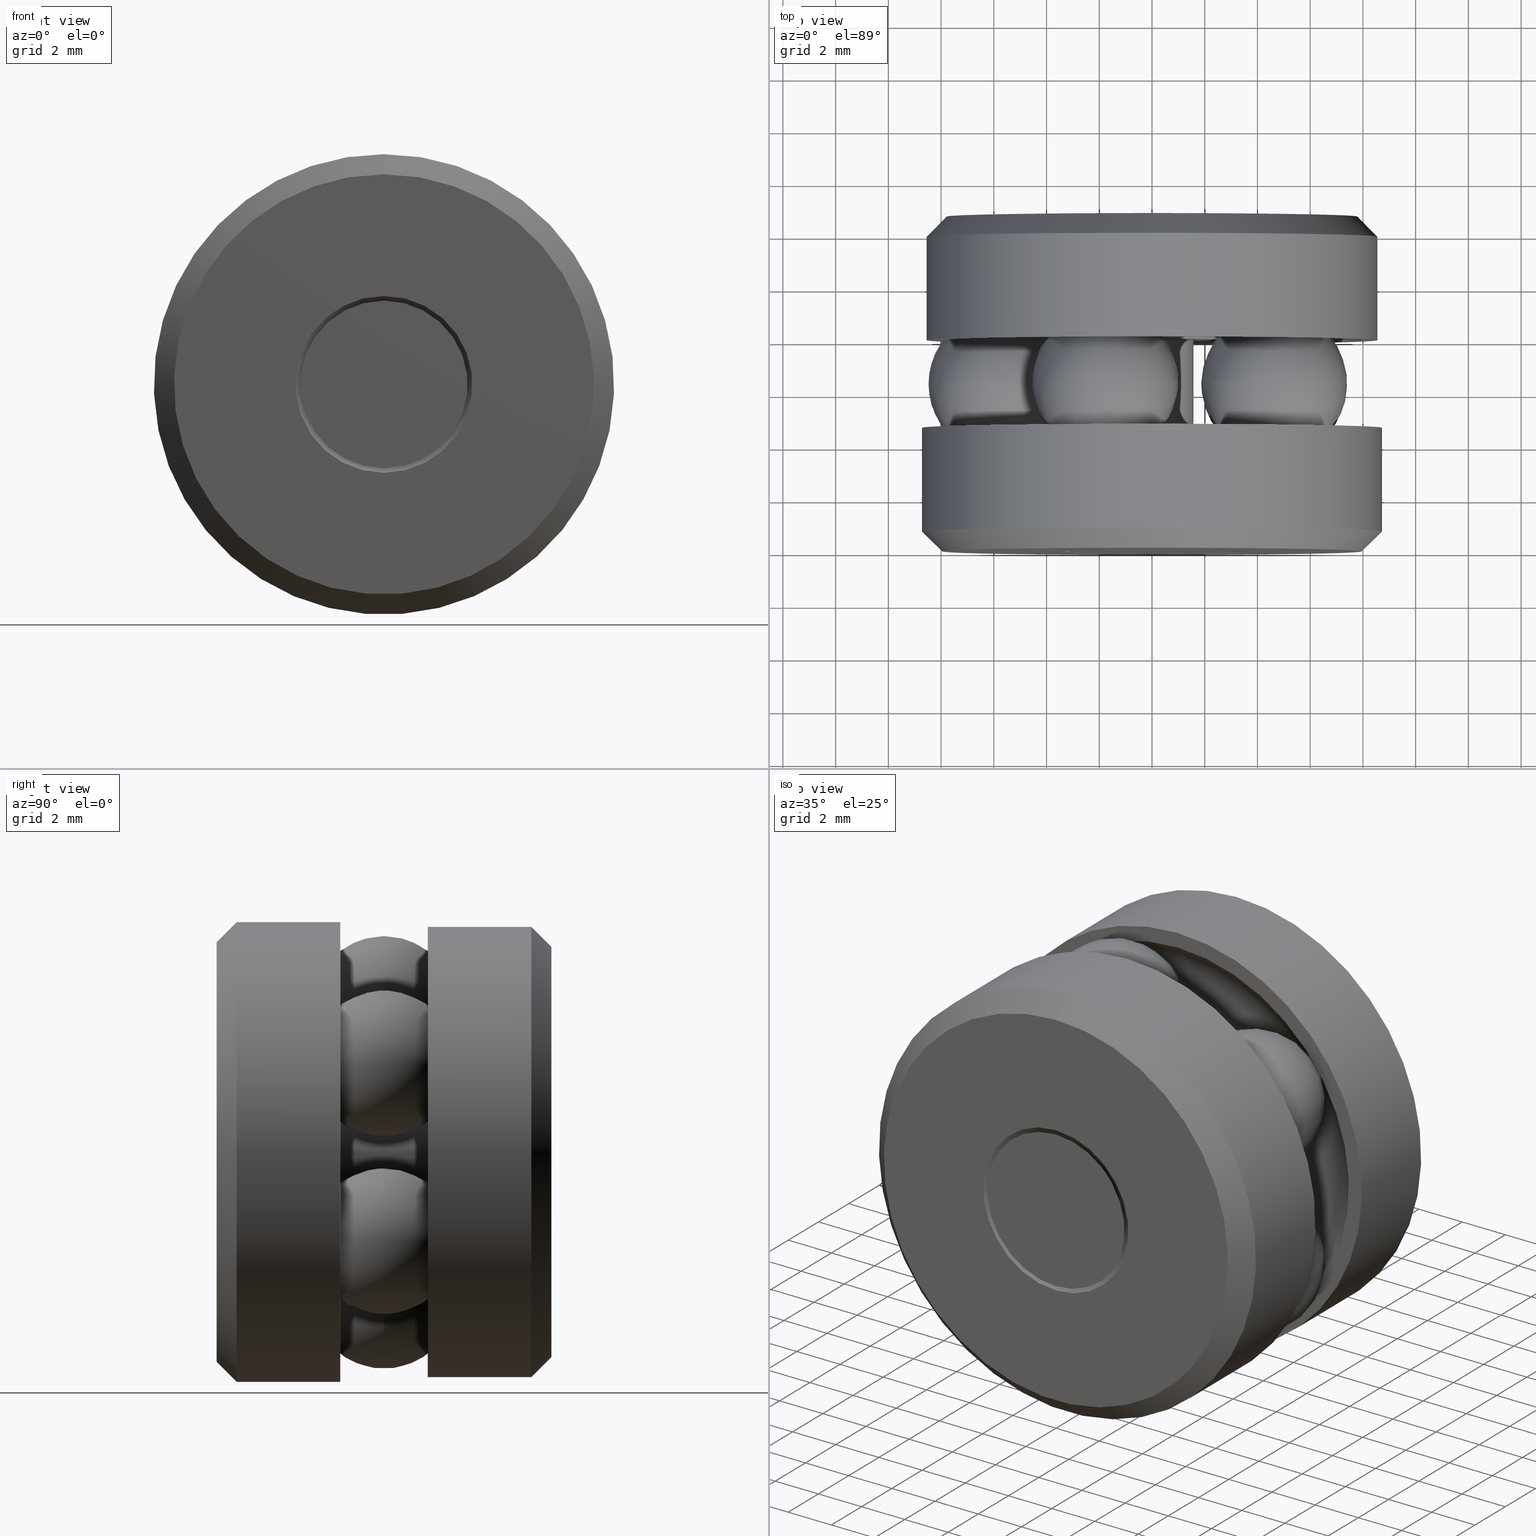
[diagram: canonical four-view strip — front | top / right | iso, engineering-drawing reading convention]
A machine part, canonical four-view strip (front | top / right | iso — engineering-drawing reading convention). The complete STEP part file that produces these views, byte-faithful:
ISO-10303-21;
HEADER;
FILE_DESCRIPTION (( 'STEP AP203' ),
    '1' );
FILE_NAME ('T-114RG_T-114RG-0011.step',
    '2016-02-04T15:34:09',
    ( '' ),
    ( '' ),
    'SwSTEP 2.0',
    'SolidWorks 2016',
    '' );
FILE_SCHEMA (( 'CONFIG_CONTROL_DESIGN' ));
ENDSEC;

DATA;
#1 = AXIS2_PLACEMENT_3D ( 'NONE', #110, #106, #127 ) ;
#2 = ORIENTED_EDGE ( 'NONE', *, *, #113, .T. ) ;
#3 = CARTESIAN_POINT ( 'NONE',  ( 0.0000000000000000000, 0.0000000000000000000, 0.0000000000000000000 ) ) ;
#4 = AXIS2_PLACEMENT_3D ( 'NONE', #57, #281, #498 ) ;
#5 = EDGE_LOOP ( 'NONE', ( #374 ) ) ;
#6 = ORIENTED_EDGE ( 'NONE', *, *, #187, .T. ) ;
#7 = EDGE_LOOP ( 'NONE', ( #136 ) ) ;
#8 = EDGE_CURVE ( 'NONE', #472, #472, #351, .T. ) ;
#9 = EDGE_CURVE ( 'NONE', #27, #27, #158, .T. ) ;
#10 = VERTEX_POINT ( 'NONE', #180 ) ;
#11 = DIRECTION ( 'NONE',  ( 0.0000000000000000000, 0.0000000000000000000, 1.000000000000000000 ) ) ;
#12 =( NAMED_UNIT ( * ) SI_UNIT ( $, .STERADIAN. ) SOLID_ANGLE_UNIT ( ) );
#13 = CIRCLE ( 'NONE', #1, 0.3437500000000000000 ) ;
#14 = EDGE_CURVE ( 'NONE', #460, #460, #13, .T. ) ;
#15 = LOCAL_TIME ( 10, 34, 9.000000000000000000, #161 ) ;
#16 = APPROVAL_STATUS ( 'not_yet_approved' ) ;
#17 = DIRECTION ( 'NONE',  ( -0.5877852522924685900, 0.0000000000000000000, 0.8090169943749506700 ) ) ;
#18 = APPROVAL_STATUS ( 'not_yet_approved' ) ;
#19 = FACE_OUTER_BOUND ( 'NONE', #184, .T. ) ;
#20 = ORIENTED_EDGE ( 'NONE', *, *, #34, .T. ) ;
#21 = AXIS2_PLACEMENT_3D ( 'NONE', #256, #310, #164 ) ;
#22 = DATE_TIME_ROLE ( 'creation_date' ) ;
#23 = DIRECTION ( 'NONE',  ( 0.0000000000000000000, 0.0000000000000000000, 1.000000000000000000 ) ) ;
#24 = DIRECTION ( 'NONE',  ( -0.0000000000000000000, 1.000000000000000000, -0.0000000000000000000 ) ) ;
#25 =( NAMED_UNIT ( * ) PLANE_ANGLE_UNIT ( ) SI_UNIT ( $, .RADIAN. ) );
#26 = DIRECTION ( 'NONE',  ( -0.8090169943749422300, 0.0000000000000000000, 0.5877852522924802400 ) ) ;
#27 = VERTEX_POINT ( 'NONE', #78 ) ;
#28 = DIRECTION ( 'NONE',  ( -0.0000000000000000000, 1.000000000000000000, -0.0000000000000000000 ) ) ;
#29 = CIRCLE ( 'NONE', #211, 0.1249999999999992800 ) ;
#30 = MANIFOLD_SOLID_BREP ( 'Revolve2[3]', #209 ) ;
#31 = AXIS2_PLACEMENT_3D ( 'NONE', #313, #308, #357 ) ;
#32 = CALENDAR_DATE ( 2016, 4, 2 ) ;
#33 = ADVANCED_FACE ( 'NONE', ( ), #257, .T. ) ;
#34 = EDGE_CURVE ( 'NONE', #350, #350, #29, .T. ) ;
#35 = ADVANCED_FACE ( 'NONE', ( #449, #138 ), #436, .T. ) ;
#36 = FACE_OUTER_BOUND ( 'NONE', #348, .T. ) ;
#37 = CARTESIAN_POINT ( 'NONE',  ( 0.0000000000000000000, 0.4375000000000000600, 0.0000000000000000000 ) ) ;
#38 = CARTESIAN_POINT ( 'NONE',  ( 0.0000000000000000000, 0.03000000000000024200, 0.0000000000000000000 ) ) ;
#39 =( CONVERSION_BASED_UNIT ( 'INCH', #151 ) LENGTH_UNIT ( ) NAMED_UNIT ( #192 ) );
#40 = AXIS2_PLACEMENT_3D ( 'NONE', #170, #185, #181 ) ;
#41 = EDGE_LOOP ( 'NONE', ( #115 ) ) ;
#42 = ORIENTED_EDGE ( 'NONE', *, *, #14, .T. ) ;
#43 = AXIS2_PLACEMENT_3D ( 'NONE', #438, #375, #368 ) ;
#44 = CARTESIAN_POINT ( 'NONE',  ( 0.1826355864801431900, 0.2500000000000000000, -0.1326925207050274100 ) ) ;
#45 = MECHANICAL_CONTEXT ( 'NONE', #52, 'mechanical' ) ;
#46 = CIRCLE ( 'NONE', #109, 0.3067500000000001300 ) ;
#47 = EDGE_LOOP ( 'NONE', ( #141 ) ) ;
#48 = EDGE_CURVE ( 'NONE', #255, #255, #537, .T. ) ;
#49 = DIRECTION ( 'NONE',  ( 1.000000000000000000, 0.0000000000000000000, 0.0000000000000000000 ) ) ;
#50 = PERSON_AND_ORGANIZATION ( #429, #229 ) ;
#51 = DIRECTION ( 'NONE',  ( 0.0000000000000000000, 0.0000000000000000000, 1.000000000000000000 ) ) ;
#52 = APPLICATION_CONTEXT ( 'configuration controlled 3d designs of mechanical parts and assemblies' ) ;
#53 = EDGE_LOOP ( 'NONE', ( #97 ) ) ;
#54 = DIRECTION ( 'NONE',  ( 0.0000000000000000000, 0.0000000000000000000, 1.000000000000000000 ) ) ;
#55 = CIRCLE ( 'NONE', #335, 0.3129500000000000100 ) ;
#56 = DIRECTION ( 'NONE',  ( -0.0000000000000000000, 1.000000000000000000, -0.0000000000000000000 ) ) ;
#57 = CARTESIAN_POINT ( 'NONE',  ( -0.1385499999999999800, 0.3154000000000000100, 0.0000000000000000000 ) ) ;
#58 = AXIS2_PLACEMENT_3D ( 'NONE', #397, #391, #471 ) ;
#59 = EDGE_LOOP ( 'NONE', ( #103 ) ) ;
#60 = ORIENTED_EDGE ( 'NONE', *, *, #88, .F. ) ;
#61 = DIRECTION ( 'NONE',  ( 0.0000000000000000000, 0.0000000000000000000, 1.000000000000000000 ) ) ;
#62 = FACE_BOUND ( 'NONE', #296, .T. ) ;
#63 = EDGE_LOOP ( 'NONE', ( #294 ) ) ;
#64 = CARTESIAN_POINT ( 'NONE',  ( 0.1826355864801451300, 0.2500000000000000000, 0.1326925207050247700 ) ) ;
#65 = DIRECTION ( 'NONE',  ( -0.0000000000000000000, 1.000000000000000000, -0.0000000000000000000 ) ) ;
#66 = EDGE_LOOP ( 'NONE', ( #542 ) ) ;
#67 = DIRECTION ( 'NONE',  ( 0.0000000000000000000, 0.0000000000000000000, 1.000000000000000000 ) ) ;
#68 = COORDINATED_UNIVERSAL_TIME_OFFSET ( 5, 0, .BEHIND. ) ;
#69 = CARTESIAN_POINT ( 'NONE',  ( 0.0000000000000000000, 0.1846000000000000700, 0.0000000000000000000 ) ) ;
#70 = DIRECTION ( 'NONE',  ( -0.0000000000000000000, 1.000000000000000000, -0.0000000000000000000 ) ) ;
#71 = EDGE_LOOP ( 'NONE', ( #76 ) ) ;
#72 = CARTESIAN_POINT ( 'NONE',  ( 0.0000000000000000000, 0.4699999999999996400, 0.0000000000000000000 ) ) ;
#73 = FACE_OUTER_BOUND ( 'NONE', #154, .T. ) ;
#74 = DIRECTION ( 'NONE',  ( -0.0000000000000000000, 1.000000000000000000, -0.0000000000000000000 ) ) ;
#75 = APPROVAL_ROLE ( '' ) ;
#76 = ORIENTED_EDGE ( 'NONE', *, *, #273, .T. ) ;
#77 = CARTESIAN_POINT ( 'NONE',  ( 0.0000000000000000000, 0.3154000000000000100, 0.0000000000000000000 ) ) ;
#78 = CARTESIAN_POINT ( 'NONE',  ( 0.0000000000000000000, 0.06250000000000001400, 0.06250000000000000000 ) ) ;
#79 = EDGE_LOOP ( 'NONE', ( #467 ) ) ;
#80 = CARTESIAN_POINT ( 'NONE',  ( 0.0000000000000000000, 0.0000000000000000000, 0.0000000000000000000 ) ) ;
#81 = FACE_OUTER_BOUND ( 'NONE', #378, .T. ) ;
#82 = DIRECTION ( 'NONE',  ( 0.5877852522924802400, -0.0000000000000000000, 0.8090169943749422300 ) ) ;
#83 = EDGE_LOOP ( 'NONE', ( #251 ) ) ;
#84 = CARTESIAN_POINT ( 'NONE',  ( 0.0000000000000000000, 0.5000000000000000000, 0.1320710678118647800 ) ) ;
#85 = AXIS2_PLACEMENT_3D ( 'NONE', #132, #190, #463 ) ;
#86 = CARTESIAN_POINT ( 'NONE',  ( 0.0000000000000000000, 0.3154000000000000100, 0.1385499999999999500 ) ) ;
#87 = DIRECTION ( 'NONE',  ( 0.0000000000000000000, 0.0000000000000000000, 1.000000000000000000 ) ) ;
#88 = EDGE_CURVE ( 'NONE', #156, #156, #338, .T. ) ;
#89 = DIRECTION ( 'NONE',  ( -0.0000000000000000000, 1.000000000000000000, 0.0000000000000000000 ) ) ;
#90 = LOCAL_TIME ( 10, 34, 9.000000000000000000, #208 ) ;
#91 = DIRECTION ( 'NONE',  ( -0.0000000000000000000, 1.000000000000000000, -0.0000000000000000000 ) ) ;
#92 = ADVANCED_FACE ( 'NONE', ( #247, #126 ), #262, .T. ) ;
#93 = ORIENTED_EDGE ( 'NONE', *, *, #326, .F. ) ;
#94 = CIRCLE ( 'NONE', #285, 0.06250000000000006900 ) ;
#95 = ADVANCED_FACE ( 'NONE', ( ), #234, .T. ) ;
#96 = CARTESIAN_POINT ( 'NONE',  ( 0.0000000000000000000, 0.4354289321881347200, 0.0000000000000000000 ) ) ;
#97 = ORIENTED_EDGE ( 'NONE', *, *, #326, .T. ) ;
#98 = EDGE_LOOP ( 'NONE', ( #422 ) ) ;
#99 = DIRECTION ( 'NONE',  ( -0.0000000000000000000, 1.000000000000000000, -0.0000000000000000000 ) ) ;
#100 = ORIENTED_EDGE ( 'NONE', *, *, #123, .F. ) ;
#101 = PLANE ( 'NONE',  #165 ) ;
#102 = CONICAL_SURFACE ( 'NONE', #323, 0.1249999999999992800, 0.7853981633974423900 ) ;
#103 = ORIENTED_EDGE ( 'NONE', *, *, #273, .F. ) ;
#104 = DIRECTION ( 'NONE',  ( 0.0000000000000000000, 0.0000000000000000000, 1.000000000000000000 ) ) ;
#105 = CALENDAR_DATE ( 2016, 4, 2 ) ;
#106 = DIRECTION ( 'NONE',  ( -0.0000000000000000000, 1.000000000000000000, -0.0000000000000000000 ) ) ;
#107 = APPROVAL_ROLE ( '' ) ;
#108 = UNCERTAINTY_MEASURE_WITH_UNIT (LENGTH_MEASURE( 1.000000000000000100E-005 ), #39, 'distance_accuracy_value', 'NONE');
#109 = AXIS2_PLACEMENT_3D ( 'NONE', #214, #213, #176 ) ;
#110 = CARTESIAN_POINT ( 'NONE',  ( 0.0000000000000000000, 0.03000000000000024200, 0.0000000000000000000 ) ) ;
#111 = FACE_OUTER_BOUND ( 'NONE', #419, .T. ) ;
#112 = ORIENTED_EDGE ( 'NONE', *, *, #113, .F. ) ;
#113 = EDGE_CURVE ( 'NONE', #10, #10, #525, .T. ) ;
#114 = DIRECTION ( 'NONE',  ( -0.9510565162951545300, 0.0000000000000000000, -0.3090169943749447300 ) ) ;
#115 = ORIENTED_EDGE ( 'NONE', *, *, #540, .T. ) ;
#116 = DIRECTION ( 'NONE',  ( 0.0000000000000000000, 0.0000000000000000000, -1.000000000000000000 ) ) ;
#117 = FACE_BOUND ( 'NONE', #356, .T. ) ;
#118 = CLOSED_SHELL ( 'NONE', ( #144 ) ) ;
#119 = DIRECTION ( 'NONE',  ( 0.0000000000000000000, 0.0000000000000000000, 1.000000000000000000 ) ) ;
#120 = PERSON_AND_ORGANIZATION ( #429, #229 ) ;
#121 = DIRECTION ( 'NONE',  ( 0.3090169943749447300, 0.0000000000000000000, -0.9510565162951545300 ) ) ;
#122 = DIRECTION ( 'NONE',  ( 0.0000000000000000000, 0.0000000000000000000, 1.000000000000000000 ) ) ;
#123 = EDGE_CURVE ( 'NONE', #447, #447, #425, .T. ) ;
#124 = ORIENTED_EDGE ( 'NONE', *, *, #48, .F. ) ;
#125 = VERTEX_POINT ( 'NONE', #474 ) ;
#126 = FACE_BOUND ( 'NONE', #527, .T. ) ;
#127 = DIRECTION ( 'NONE',  ( 0.0000000000000000000, 0.0000000000000000000, 1.000000000000000000 ) ) ;
#128 = DIRECTION ( 'NONE',  ( -0.0000000000000000000, 1.000000000000000000, -0.0000000000000000000 ) ) ;
#129 = AXIS2_PLACEMENT_3D ( 'NONE', #142, #140, #134 ) ;
#130 = FACE_OUTER_BOUND ( 'NONE', #532, .T. ) ;
#131 = EDGE_LOOP ( 'NONE', ( #458 ) ) ;
#132 = CARTESIAN_POINT ( 'NONE',  ( 0.0000000000000000000, 0.0000000000000000000, 0.0000000000000000000 ) ) ;
#133 = DIRECTION ( 'NONE',  ( -0.0000000000000000000, 1.000000000000000000, -0.0000000000000000000 ) ) ;
#134 = DIRECTION ( 'NONE',  ( 0.0000000000000000000, 0.0000000000000000000, 1.000000000000000000 ) ) ;
#135 = DIRECTION ( 'NONE',  ( 0.0000000000000000000, 0.0000000000000000000, 1.000000000000000000 ) ) ;
#136 = ORIENTED_EDGE ( 'NONE', *, *, #9, .F. ) ;
#137 = VERTEX_POINT ( 'NONE', #86 ) ;
#138 = FACE_OUTER_BOUND ( 'NONE', #163, .T. ) ;
#139 = AXIS2_PLACEMENT_3D ( 'NONE', #284, #282, #280 ) ;
#140 = DIRECTION ( 'NONE',  ( -0.0000000000000000000, 1.000000000000000000, -0.0000000000000000000 ) ) ;
#141 = ORIENTED_EDGE ( 'NONE', *, *, #187, .F. ) ;
#142 = CARTESIAN_POINT ( 'NONE',  ( 0.0000000000000000000, 0.1845999999999999600, 0.0000000000000000000 ) ) ;
#143 = ADVANCED_FACE ( 'NONE', ( #461 ), #101, .T. ) ;
#144 = ADVANCED_FACE ( 'NONE', ( ), #511, .T. ) ;
#145 = EDGE_CURVE ( 'NONE', #337, #337, #328, .T. ) ;
#146 = EDGE_CURVE ( 'NONE', #246, #246, #414, .T. ) ;
#147 = FACE_BOUND ( 'NONE', #390, .T. ) ;
#148 = EDGE_LOOP ( 'NONE', ( #20 ) ) ;
#149 = DIRECTION ( 'NONE',  ( 0.0000000000000000000, 0.0000000000000000000, 1.000000000000000000 ) ) ;
#150 = CLOSED_SHELL ( 'NONE', ( #332, #454, #259, #416, #365, #191, #292, #92 ) ) ;
#151 = LENGTH_MEASURE_WITH_UNIT ( LENGTH_MEASURE( 0.02539999999999999900 ), #236 );
#152 = AXIS2_PLACEMENT_3D ( 'NONE', #445, #363, #469 ) ;
#153 = DIRECTION ( 'NONE',  ( -0.8090169943749506700, 0.0000000000000000000, -0.5877852522924685900 ) ) ;
#154 = EDGE_LOOP ( 'NONE', ( #42 ) ) ;
#155 = MANIFOLD_SOLID_BREP ( 'Revolve3', #264 ) ;
#156 = VERTEX_POINT ( 'NONE', #199 ) ;
#157 = EDGE_CURVE ( 'NONE', #137, #137, #222, .T. ) ;
#158 = CIRCLE ( 'NONE', #40, 0.06250000000000000000 ) ;
#159 = CARTESIAN_POINT ( 'NONE',  ( -0.06976058648014681100, 0.2500000000000000000, -0.2147010085536301100 ) ) ;
#160 = ORIENTED_EDGE ( 'NONE', *, *, #123, .T. ) ;
#161 = COORDINATED_UNIVERSAL_TIME_OFFSET ( 5, 0, .BEHIND. ) ;
#162 = FACE_OUTER_BOUND ( 'NONE', #83, .T. ) ;
#163 = EDGE_LOOP ( 'NONE', ( #305 ) ) ;
#164 = DIRECTION ( 'NONE',  ( 1.000000000000000000, 0.0000000000000000000, 0.0000000000000000000 ) ) ;
#165 = AXIS2_PLACEMENT_3D ( 'NONE', #235, #468, #412 ) ;
#166 = CLOSED_SHELL ( 'NONE', ( #223 ) ) ;
#167 = PRODUCT ( 'T-114RG_T-114RG-0011', 'T-114RG_T-114RG-0011', '', ( #45 ) ) ;
#168 = CC_DESIGN_PERSON_AND_ORGANIZATION_ASSIGNMENT ( #50, #286, ( #453 ) ) ;
#169 = DIRECTION ( 'NONE',  ( -0.0000000000000000000, 1.000000000000000000, 0.0000000000000000000 ) ) ;
#170 = CARTESIAN_POINT ( 'NONE',  ( 0.0000000000000000000, 0.06250000000000001400, 0.0000000000000000000 ) ) ;
#171 = EDGE_LOOP ( 'NONE', ( #201 ) ) ;
#172 = ORIENTED_EDGE ( 'NONE', *, *, #224, .F. ) ;
#173 =( GEOMETRIC_REPRESENTATION_CONTEXT ( 3 ) GLOBAL_UNCERTAINTY_ASSIGNED_CONTEXT ( ( #108 ) ) GLOBAL_UNIT_ASSIGNED_CONTEXT ( ( #39, #25, #12 ) ) REPRESENTATION_CONTEXT ( 'NONE', 'WORKASPACE' ) );
#174 = LOCAL_TIME ( 10, 34, 9.000000000000000000, #269 ) ;
#175 = CARTESIAN_POINT ( 'NONE',  ( 0.0000000000000000000, 0.5000000000000000000, 0.1249999999999992800 ) ) ;
#176 = DIRECTION ( 'NONE',  ( 0.0000000000000000000, 0.0000000000000000000, 1.000000000000000000 ) ) ;
#177 = FACE_BOUND ( 'NONE', #171, .T. ) ;
#178 = EDGE_CURVE ( 'NONE', #535, #535, #301, .T. ) ;
#179 = EDGE_CURVE ( 'NONE', #434, #434, #94, .T. ) ;
#180 = CARTESIAN_POINT ( 'NONE',  ( 0.0000000000000000000, 0.06457106781186539000, 0.06750000000000000400 ) ) ;
#181 = DIRECTION ( 'NONE',  ( 0.0000000000000000000, 0.0000000000000000000, 1.000000000000000000 ) ) ;
#182 = AXIS2_PLACEMENT_3D ( 'NONE', #367, #89, #359 ) ;
#183 = SHAPE_DEFINITION_REPRESENTATION ( #300, #522 ) ;
#184 = EDGE_LOOP ( 'NONE', ( #362 ) ) ;
#185 = DIRECTION ( 'NONE',  ( -0.0000000000000000000, 1.000000000000000000, -0.0000000000000000000 ) ) ;
#186 = APPROVAL_DATE_TIME ( #277, #480 ) ;
#187 = EDGE_CURVE ( 'NONE', #325, #325, #501, .T. ) ;
#188 = ADVANCED_FACE ( 'NONE', ( ), #293, .T. ) ;
#189 = FACE_OUTER_BOUND ( 'NONE', #63, .T. ) ;
#190 = DIRECTION ( 'NONE',  ( -0.0000000000000000000, 1.000000000000000000, -0.0000000000000000000 ) ) ;
#191 = ADVANCED_FACE ( 'NONE', ( #212, #311 ), #493, .T. ) ;
#192 = DIMENSIONAL_EXPONENTS ( 1.000000000000000000, 0.0000000000000000000, 0.0000000000000000000, 0.0000000000000000000, 0.0000000000000000000, 0.0000000000000000000, 0.0000000000000000000 ) ;
#193 = AXIS2_PLACEMENT_3D ( 'NONE', #159, #253, #258 ) ;
#194 = CARTESIAN_POINT ( 'NONE',  ( 0.0000000000000000000, 0.5000000000000000000, 0.0000000000000000000 ) ) ;
#195 = DIRECTION ( 'NONE',  ( 0.0000000000000000000, 0.0000000000000000000, 1.000000000000000000 ) ) ;
#196 = FACE_OUTER_BOUND ( 'NONE', #324, .T. ) ;
#197 = EDGE_LOOP ( 'NONE', ( #172 ) ) ;
#198 = APPROVAL_PERSON_ORGANIZATION ( #289, #480, #75 ) ;
#199 = CARTESIAN_POINT ( 'NONE',  ( 0.0000000000000000000, 0.4354289321881347200, 0.06750000000000007400 ) ) ;
#200 = FACE_BOUND ( 'NONE', #536, .T. ) ;
#201 = ORIENTED_EDGE ( 'NONE', *, *, #540, .F. ) ;
#202 = DIRECTION ( 'NONE',  ( 0.0000000000000000000, 0.0000000000000000000, -1.000000000000000000 ) ) ;
#203 = AXIS2_PLACEMENT_3D ( 'NONE', #307, #302, #320 ) ;
#204 = CYLINDRICAL_SURFACE ( 'NONE', #462, 0.06750000000000006000 ) ;
#205 = CLOSED_SHELL ( 'NONE', ( #33 ) ) ;
#206 = CARTESIAN_POINT ( 'NONE',  ( 0.0000000000000000000, -8.751687669889281100E-019, 0.1320710678118647000 ) ) ;
#207 = AXIS2_PLACEMENT_3D ( 'NONE', #372, #446, #448 ) ;
#208 = COORDINATED_UNIVERSAL_TIME_OFFSET ( 5, 0, .BEHIND. ) ;
#209 = CLOSED_SHELL ( 'NONE', ( #261, #221, #529, #492, #455, #369, #330, #295 ) ) ;
#210 = MANIFOLD_SOLID_BREP ( 'BALLS[4]', #118 ) ;
#211 = AXIS2_PLACEMENT_3D ( 'NONE', #327, #316, #254 ) ;
#212 = FACE_OUTER_BOUND ( 'NONE', #71, .T. ) ;
#213 = DIRECTION ( 'NONE',  ( -0.0000000000000000000, 1.000000000000000000, -0.0000000000000000000 ) ) ;
#214 = CARTESIAN_POINT ( 'NONE',  ( 0.0000000000000000000, 0.5000000000000000000, 0.0000000000000000000 ) ) ;
#215 = AXIS2_PLACEMENT_3D ( 'NONE', #218, #231, #227 ) ;
#216 = FACE_BOUND ( 'NONE', #275, .T. ) ;
#217 = EDGE_LOOP ( 'NONE', ( #411 ) ) ;
#218 = CARTESIAN_POINT ( 'NONE',  ( 0.0000000000000000000, -5.740417299497304900E-017, 0.0000000000000000000 ) ) ;
#219 = LOCAL_TIME ( 10, 34, 9.000000000000000000, #306 ) ;
#220 = VERTEX_POINT ( 'NONE', #238 ) ;
#221 = ADVANCED_FACE ( 'NONE', ( #200, #111 ), #482, .T. ) ;
#222 = CIRCLE ( 'NONE', #241, 0.1385499999999999500 ) ;
#223 = ADVANCED_FACE ( 'NONE', ( ), #388, .T. ) ;
#224 = EDGE_CURVE ( 'NONE', #233, #233, #55, .T. ) ;
#225 = FACE_BOUND ( 'NONE', #395, .T. ) ;
#226 = ORIENTED_EDGE ( 'NONE', *, *, #494, .T. ) ;
#227 = DIRECTION ( 'NONE',  ( 0.0000000000000000000, 0.0000000000000000000, 1.000000000000000000 ) ) ;
#228 = DIRECTION ( 'NONE',  ( 0.0000000000000000000, 0.0000000000000000000, 1.000000000000000000 ) ) ;
#229 = ORGANIZATION ( 'UNSPECIFIED', 'UNSPECIFIED', '' ) ;
#230 = AXIS2_PLACEMENT_3D ( 'NONE', #415, #128, #228 ) ;
#231 = DIRECTION ( 'NONE',  ( -0.0000000000000000000, 1.000000000000000000, -0.0000000000000000000 ) ) ;
#232 = CARTESIAN_POINT ( 'NONE',  ( 0.0000000000000000000, 0.06457106781186539000, 0.0000000000000000000 ) ) ;
#233 = VERTEX_POINT ( 'NONE', #464 ) ;
#234 = SPHERICAL_SURFACE ( 'NONE', #21, 0.1090000000000000400 ) ;
#235 = CARTESIAN_POINT ( 'NONE',  ( 0.0000000000000000000, 0.5000000000000000000, 0.0000000000000000000 ) ) ;
#236 =( LENGTH_UNIT ( ) NAMED_UNIT ( * ) SI_UNIT ( $, .METRE. ) );
#237 = ORIENTED_EDGE ( 'NONE', *, *, #8, .T. ) ;
#238 = CARTESIAN_POINT ( 'NONE',  ( 0.0000000000000000000, 0.5000000000000000000, 0.3067500000000001300 ) ) ;
#239 = TOROIDAL_SURFACE ( 'NONE', #410, 0.2257499999999999800, 0.1090000000000000100 ) ;
#240 = EDGE_LOOP ( 'NONE', ( #93 ) ) ;
#241 = AXIS2_PLACEMENT_3D ( 'NONE', #276, #271, #268 ) ;
#242 = DIRECTION ( 'NONE',  ( 0.0000000000000000000, 0.0000000000000000000, 1.000000000000000000 ) ) ;
#243 = MANIFOLD_SOLID_BREP ( 'BALLS[3]', #491 ) ;
#244 = DIRECTION ( 'NONE',  ( -0.0000000000000000000, 1.000000000000000000, -0.0000000000000000000 ) ) ;
#245 = EDGE_LOOP ( 'NONE', ( #318 ) ) ;
#246 = VERTEX_POINT ( 'NONE', #440 ) ;
#247 = FACE_OUTER_BOUND ( 'NONE', #41, .T. ) ;
#248 = CARTESIAN_POINT ( 'NONE',  ( 0.0000000000000000000, 0.2500000000000000000, 0.0000000000000000000 ) ) ;
#249 = APPROVAL_DATE_TIME ( #340, #432 ) ;
#250 = CONICAL_SURFACE ( 'NONE', #517, 0.3067500000000001300, 0.7853981633974409500 ) ;
#251 = ORIENTED_EDGE ( 'NONE', *, *, #145, .T. ) ;
#252 = EDGE_CURVE ( 'NONE', #125, #125, #400, .T. ) ;
#253 = DIRECTION ( 'NONE',  ( 0.9510565162951500900, 0.0000000000000000000, -0.3090169943749582200 ) ) ;
#254 = DIRECTION ( 'NONE',  ( 0.0000000000000000000, 0.0000000000000000000, 1.000000000000000000 ) ) ;
#255 = VERTEX_POINT ( 'NONE', #206 ) ;
#256 = CARTESIAN_POINT ( 'NONE',  ( -0.2257499999999999800, 0.2500000000000000000, 0.0000000000000000000 ) ) ;
#257 = SPHERICAL_SURFACE ( 'NONE', #450, 0.1090000000000000400 ) ;
#258 = DIRECTION ( 'NONE',  ( 0.3090169943749582200, 0.0000000000000000000, 0.9510565162951500900 ) ) ;
#259 = ADVANCED_FACE ( 'NONE', ( #279, #272 ), #503, .T. ) ;
#260 = APPROVAL_PERSON_ORGANIZATION ( #352, #432, #107 ) ;
#261 = ADVANCED_FACE ( 'NONE', ( #73, #36 ), #353, .T. ) ;
#262 = PLANE ( 'NONE',  #530 ) ;
#263 = TOROIDAL_SURFACE ( 'NONE', #230, 0.2257499999999999800, 0.1090000000000000400 ) ;
#264 = CLOSED_SHELL ( 'NONE', ( #95 ) ) ;
#265 = AXIS2_PLACEMENT_3D ( 'NONE', #72, #70, #67 ) ;
#266 = DIRECTION ( 'NONE',  ( 0.0000000000000000000, 0.0000000000000000000, 1.000000000000000000 ) ) ;
#267 = ORIENTED_EDGE ( 'NONE', *, *, #146, .T. ) ;
#268 = DIRECTION ( 'NONE',  ( 0.0000000000000000000, 0.0000000000000000000, 1.000000000000000000 ) ) ;
#269 = COORDINATED_UNIVERSAL_TIME_OFFSET ( 5, 0, .BEHIND. ) ;
#270 = AXIS2_PLACEMENT_3D ( 'NONE', #80, #122, #49 ) ;
#271 = DIRECTION ( 'NONE',  ( -0.0000000000000000000, 1.000000000000000000, -0.0000000000000000000 ) ) ;
#272 = FACE_OUTER_BOUND ( 'NONE', #131, .T. ) ;
#273 = EDGE_CURVE ( 'NONE', #524, #524, #466, .T. ) ;
#274 = FACE_BOUND ( 'NONE', #7, .T. ) ;
#275 = EDGE_LOOP ( 'NONE', ( #2 ) ) ;
#276 = CARTESIAN_POINT ( 'NONE',  ( 0.0000000000000000000, 0.3154000000000000100, 0.0000000000000000000 ) ) ;
#277 = DATE_AND_TIME ( #384, #490 ) ;
#278 = CARTESIAN_POINT ( 'NONE',  ( 0.0000000000000000000, 0.0000000000000000000, 0.0000000000000000000 ) ) ;
#279 = FACE_BOUND ( 'NONE', #371, .T. ) ;
#280 = DIRECTION ( 'NONE',  ( 0.0000000000000000000, -0.0000000000000000000, -1.000000000000000000 ) ) ;
#281 = DIRECTION ( 'NONE',  ( 0.0000000000000000000, -1.000000000000000000, 0.0000000000000000000 ) ) ;
#282 = DIRECTION ( 'NONE',  ( 0.0000000000000000000, -1.000000000000000000, 0.0000000000000000000 ) ) ;
#283 = DIRECTION ( 'NONE',  ( -0.0000000000000000000, 1.000000000000000000, 0.0000000000000000000 ) ) ;
#284 = CARTESIAN_POINT ( 'NONE',  ( -0.1320710678118647000, -2.913967088098098900E-017, 0.0000000000000000000 ) ) ;
#285 = AXIS2_PLACEMENT_3D ( 'NONE', #37, #24, #23 ) ;
#286 = PERSON_AND_ORGANIZATION_ROLE ( 'creator' ) ;
#287 = FACE_OUTER_BOUND ( 'NONE', #240, .T. ) ;
#288 = EDGE_LOOP ( 'NONE', ( #226 ) ) ;
#289 = PERSON_AND_ORGANIZATION ( #429, #229 ) ;
#290 = MANIFOLD_SOLID_BREP ( 'BALLS[1]', #205 ) ;
#291 = CC_DESIGN_PERSON_AND_ORGANIZATION_ASSIGNMENT ( #120, #389, ( #167 ) ) ;
#292 = ADVANCED_FACE ( 'NONE', ( #370, #177 ), #250, .T. ) ;
#293 = SPHERICAL_SURFACE ( 'NONE', #358, 0.1090000000000000400 ) ;
#294 = ORIENTED_EDGE ( 'NONE', *, *, #224, .T. ) ;
#295 = ADVANCED_FACE ( 'NONE', ( #162, #457 ), #406, .T. ) ;
#296 = EDGE_LOOP ( 'NONE', ( #354 ) ) ;
#297 = AXIS2_PLACEMENT_3D ( 'NONE', #435, #344, #381 ) ;
#298 = PERSON_AND_ORGANIZATION ( #429, #229 ) ;
#299 = ORIENTED_EDGE ( 'NONE', *, *, #14, .F. ) ;
#300 = PRODUCT_DEFINITION_SHAPE ( 'NONE', 'NONE',  #312 ) ;
#301 = CIRCLE ( 'NONE', #265, 0.3367500000000000500 ) ;
#302 = DIRECTION ( 'NONE',  ( -0.0000000000000000000, 1.000000000000000000, -0.0000000000000000000 ) ) ;
#303 = AXIS2_PLACEMENT_3D ( 'NONE', #77, #74, #135 ) ;
#304 = FACE_OUTER_BOUND ( 'NONE', #47, .T. ) ;
#305 = ORIENTED_EDGE ( 'NONE', *, *, #179, .F. ) ;
#306 = COORDINATED_UNIVERSAL_TIME_OFFSET ( 5, 0, .BEHIND. ) ;
#307 = CARTESIAN_POINT ( 'NONE',  ( 0.0000000000000000000, 0.5000000000000000000, 0.0000000000000000000 ) ) ;
#308 = DIRECTION ( 'NONE',  ( 0.0000000000000000000, -1.000000000000000000, 0.0000000000000000000 ) ) ;
#309 = VERTEX_POINT ( 'NONE', #516 ) ;
#310 = DIRECTION ( 'NONE',  ( 0.0000000000000000000, 0.0000000000000000000, -1.000000000000000000 ) ) ;
#311 = FACE_OUTER_BOUND ( 'NONE', #5, .T. ) ;
#312 = PRODUCT_DEFINITION ( 'UNKNOWN', '', #453, #523 ) ;
#313 = CARTESIAN_POINT ( 'NONE',  ( -0.1249999999999992000, 0.0000000000000000000, 0.0000000000000000000 ) ) ;
#314 = CARTESIAN_POINT ( 'NONE',  ( 0.0000000000000000000, 0.06250000000000001400, 0.0000000000000000000 ) ) ;
#315 = DIRECTION ( 'NONE',  ( 0.0000000000000000000, 0.0000000000000000000, 1.000000000000000000 ) ) ;
#316 = DIRECTION ( 'NONE',  ( -0.0000000000000000000, 1.000000000000000000, -0.0000000000000000000 ) ) ;
#317 = CONICAL_SURFACE ( 'NONE', #207, 0.06750000000000007400, 0.7853981633974438400 ) ;
#318 = ORIENTED_EDGE ( 'NONE', *, *, #178, .T. ) ;
#319 = CC_DESIGN_PERSON_AND_ORGANIZATION_ASSIGNMENT ( #478, #427, ( #453 ) ) ;
#320 = DIRECTION ( 'NONE',  ( 0.0000000000000000000, 0.0000000000000000000, 1.000000000000000000 ) ) ;
#321 = APPLICATION_PROTOCOL_DEFINITION ( 'international standard', 'config_control_design', 1994, #52 ) ;
#322 = MANIFOLD_SOLID_BREP ( 'BALLS[2]', #166 ) ;
#323 = AXIS2_PLACEMENT_3D ( 'NONE', #194, #451, #51 ) ;
#324 = EDGE_LOOP ( 'NONE', ( #407 ) ) ;
#325 = VERTEX_POINT ( 'NONE', #476 ) ;
#326 = EDGE_CURVE ( 'NONE', #424, #424, #343, .T. ) ;
#327 = CARTESIAN_POINT ( 'NONE',  ( 0.0000000000000000000, 0.5000000000000000000, 0.0000000000000000000 ) ) ;
#328 = CIRCLE ( 'NONE', #129, 0.3437500000000000000 ) ;
#329 = CARTESIAN_POINT ( 'NONE',  ( -0.1320710678118647800, 0.5000000000000000000, 0.0000000000000000000 ) ) ;
#330 = ADVANCED_FACE ( 'NONE', ( #189, #541 ), #263, .F. ) ;
#331 = DIRECTION ( 'NONE',  ( -0.0000000000000000000, 1.000000000000000000, -0.0000000000000000000 ) ) ;
#332 = ADVANCED_FACE ( 'NONE', ( #333, #147 ), #317, .F. ) ;
#333 = FACE_OUTER_BOUND ( 'NONE', #514, .T. ) ;
#334 = ORIENTED_EDGE ( 'NONE', *, *, #494, .F. ) ;
#335 = AXIS2_PLACEMENT_3D ( 'NONE', #385, #133, #315 ) ;
#336 = PLANE ( 'NONE',  #139 ) ;
#337 = VERTEX_POINT ( 'NONE', #401 ) ;
#338 = CIRCLE ( 'NONE', #456, 0.06750000000000007400 ) ;
#339 = APPROVAL ( #16, 'UNSPECIFIED' ) ;
#340 = DATE_AND_TIME ( #452, #15 ) ;
#341 = DIRECTION ( 'NONE',  ( -0.0000000000000000000, 1.000000000000000000, -0.0000000000000000000 ) ) ;
#342 = CARTESIAN_POINT ( 'NONE',  ( 0.0000000000000000000, -8.751687669889281100E-019, 0.0000000000000000000 ) ) ;
#343 = CIRCLE ( 'NONE', #152, 0.1249999999999992000 ) ;
#344 = DIRECTION ( 'NONE',  ( 0.0000000000000000000, -1.000000000000000000, 0.0000000000000000000 ) ) ;
#345 = ORIENTED_EDGE ( 'NONE', *, *, #145, .F. ) ;
#346 = CARTESIAN_POINT ( 'NONE',  ( 0.0000000000000000000, 0.5000000000000000000, 0.0000000000000000000 ) ) ;
#347 = SECURITY_CLASSIFICATION ( '', '', #408 ) ;
#348 = EDGE_LOOP ( 'NONE', ( #345 ) ) ;
#349 = AXIS2_PLACEMENT_3D ( 'NONE', #394, #283, #355 ) ;
#350 = VERTEX_POINT ( 'NONE', #175 ) ;
#351 = CIRCLE ( 'NONE', #203, 0.1320710678118647800 ) ;
#352 = PERSON_AND_ORGANIZATION ( #429, #229 ) ;
#353 = CYLINDRICAL_SURFACE ( 'NONE', #85, 0.3437500000000000000 ) ;
#354 = ORIENTED_EDGE ( 'NONE', *, *, #48, .T. ) ;
#355 = DIRECTION ( 'NONE',  ( 0.0000000000000000000, 0.0000000000000000000, 1.000000000000000000 ) ) ;
#356 = EDGE_LOOP ( 'NONE', ( #473 ) ) ;
#357 = DIRECTION ( 'NONE',  ( 0.0000000000000000000, -0.0000000000000000000, -1.000000000000000000 ) ) ;
#358 = AXIS2_PLACEMENT_3D ( 'NONE', #44, #82, #26 ) ;
#359 = DIRECTION ( 'NONE',  ( 0.0000000000000000000, 0.0000000000000000000, 1.000000000000000000 ) ) ;
#360 = CARTESIAN_POINT ( 'NONE',  ( 0.0000000000000000000, 0.4375000000000000600, 0.06250000000000006900 ) ) ;
#361 = CONICAL_SURFACE ( 'NONE', #534, 0.06250000000000000000, 0.7853981633974418400 ) ;
#362 = ORIENTED_EDGE ( 'NONE', *, *, #157, .T. ) ;
#363 = DIRECTION ( 'NONE',  ( -0.0000000000000000000, 1.000000000000000000, -0.0000000000000000000 ) ) ;
#364 = PERSON_AND_ORGANIZATION ( #429, #229 ) ;
#365 = ADVANCED_FACE ( 'NONE', ( #442, #430 ), #398, .T. ) ;
#366 = CC_DESIGN_APPROVAL ( #339, ( #312 ) ) ;
#367 = CARTESIAN_POINT ( 'NONE',  ( -0.3437500000000000000, 0.1845999999999999300, 0.0000000000000000000 ) ) ;
#368 = DIRECTION ( 'NONE',  ( 0.0000000000000000000, 0.0000000000000000000, 1.000000000000000000 ) ) ;
#369 = ADVANCED_FACE ( 'NONE', ( #531, #225 ), #403, .T. ) ;
#370 = FACE_OUTER_BOUND ( 'NONE', #245, .T. ) ;
#371 = EDGE_LOOP ( 'NONE', ( #6 ) ) ;
#372 = CARTESIAN_POINT ( 'NONE',  ( 0.0000000000000000000, 0.4354289321881347200, 0.0000000000000000000 ) ) ;
#373 = CC_DESIGN_PERSON_AND_ORGANIZATION_ASSIGNMENT ( #364, #387, ( #347 ) ) ;
#374 = ORIENTED_EDGE ( 'NONE', *, *, #178, .F. ) ;
#375 = DIRECTION ( 'NONE',  ( -0.0000000000000000000, 1.000000000000000000, -0.0000000000000000000 ) ) ;
#376 = CARTESIAN_POINT ( 'NONE',  ( 0.0000000000000000000, 0.4699999999999996400, 0.3367500000000000500 ) ) ;
#377 = CONICAL_SURFACE ( 'NONE', #380, 0.1320710678118647000, 0.7853981633974428400 ) ;
#378 = EDGE_LOOP ( 'NONE', ( #112 ) ) ;
#379 = APPROVAL_STATUS ( 'not_yet_approved' ) ;
#380 = AXIS2_PLACEMENT_3D ( 'NONE', #539, #533, #538 ) ;
#381 = DIRECTION ( 'NONE',  ( 0.0000000000000000000, -0.0000000000000000000, -1.000000000000000000 ) ) ;
#382 = MANIFOLD_SOLID_BREP ( 'Revolve2[1]', #431 ) ;
#383 = DATE_TIME_ROLE ( 'classification_date' ) ;
#384 = CALENDAR_DATE ( 2016, 4, 2 ) ;
#385 = CARTESIAN_POINT ( 'NONE',  ( 0.0000000000000000000, 0.1845999999999999300, 0.0000000000000000000 ) ) ;
#386 = CARTESIAN_POINT ( 'NONE',  ( 0.0000000000000000000, 0.0000000000000000000, 0.0000000000000000000 ) ) ;
#387 = PERSON_AND_ORGANIZATION_ROLE ( 'classification_officer' ) ;
#388 = SPHERICAL_SURFACE ( 'NONE', #444, 0.1090000000000000400 ) ;
#389 = PERSON_AND_ORGANIZATION_ROLE ( 'design_owner' ) ;
#390 = EDGE_LOOP ( 'NONE', ( #60 ) ) ;
#391 = DIRECTION ( 'NONE',  ( -0.0000000000000000000, 1.000000000000000000, -0.0000000000000000000 ) ) ;
#392 = AXIS2_PLACEMENT_3D ( 'NONE', #38, #99, #195 ) ;
#393 = CYLINDRICAL_SURFACE ( 'NONE', #488, 0.06750000000000001800 ) ;
#394 = CARTESIAN_POINT ( 'NONE',  ( -0.1385499999999999500, 0.1845999999999999900, 0.0000000000000000000 ) ) ;
#395 = EDGE_LOOP ( 'NONE', ( #334 ) ) ;
#396 = DATE_AND_TIME ( #499, #90 ) ;
#397 = CARTESIAN_POINT ( 'NONE',  ( 0.0000000000000000000, 0.1845999999999999600, 0.0000000000000000000 ) ) ;
#398 = PLANE ( 'NONE',  #297 ) ;
#399 = CC_DESIGN_PERSON_AND_ORGANIZATION_ASSIGNMENT ( #298, #485, ( #312 ) ) ;
#400 = CIRCLE ( 'NONE', #470, 0.3129500000000000100 ) ;
#401 = CARTESIAN_POINT ( 'NONE',  ( 0.0000000000000000000, 0.1845999999999999600, 0.3437500000000000000 ) ) ;
#402 = AXIS2_PLACEMENT_3D ( 'NONE', #342, #341, #266 ) ;
#403 = PLANE ( 'NONE',  #349 ) ;
#404 = CC_DESIGN_DATE_AND_TIME_ASSIGNMENT ( #465, #383, ( #347 ) ) ;
#405 = FACE_OUTER_BOUND ( 'NONE', #53, .T. ) ;
#406 = PLANE ( 'NONE',  #182 ) ;
#407 = ORIENTED_EDGE ( 'NONE', *, *, #146, .F. ) ;
#408 = SECURITY_CLASSIFICATION_LEVEL ( 'unclassified' ) ;
#409 = APPROVAL_DATE_TIME ( #509, #339 ) ;
#410 = AXIS2_PLACEMENT_3D ( 'NONE', #248, #56, #11 ) ;
#411 = ORIENTED_EDGE ( 'NONE', *, *, #252, .F. ) ;
#412 = DIRECTION ( 'NONE',  ( 0.0000000000000000000, 0.0000000000000000000, 1.000000000000000000 ) ) ;
#413 = ADVANCED_FACE ( 'NONE', ( #117, #130 ), #102, .T. ) ;
#414 = CIRCLE ( 'NONE', #215, 0.3137500000000000300 ) ;
#415 = CARTESIAN_POINT ( 'NONE',  ( 0.0000000000000000000, 0.2500000000000000000, 0.0000000000000000000 ) ) ;
#416 = ADVANCED_FACE ( 'NONE', ( #19, #513 ), #239, .F. ) ;
#417 = CARTESIAN_POINT ( 'NONE',  ( 0.0000000000000000000, 0.1845999999999999600, 0.1385499999999999500 ) ) ;
#418 = FACE_OUTER_BOUND ( 'NONE', #66, .T. ) ;
#419 = EDGE_LOOP ( 'NONE', ( #299 ) ) ;
#420 = AXIS2_PLACEMENT_3D ( 'NONE', #3, #28, #489 ) ;
#421 = APPROVAL_PERSON_ORGANIZATION ( #519, #339, #512 ) ;
#422 = ORIENTED_EDGE ( 'NONE', *, *, #9, .T. ) ;
#423 = ORIENTED_EDGE ( 'NONE', *, *, #34, .F. ) ;
#424 = VERTEX_POINT ( 'NONE', #510 ) ;
#425 = CIRCLE ( 'NONE', #58, 0.1385499999999999500 ) ;
#426 = CC_DESIGN_DATE_AND_TIME_ASSIGNMENT ( #396, #22, ( #312 ) ) ;
#427 = PERSON_AND_ORGANIZATION_ROLE ( 'design_supplier' ) ;
#428 = AXIS2_PLACEMENT_3D ( 'NONE', #386, #331, #119 ) ;
#429 = PERSON ( 'UNSPECIFIED', 'UNSPECIFIED', 'UNSPECIFIED', ('UNSPECIFIED'), ('UNSPECIFIED'), ('UNSPECIFIED') ) ;
#430 = FACE_OUTER_BOUND ( 'NONE', #59, .T. ) ;
#431 = CLOSED_SHELL ( 'NONE', ( #495, #143, #413, #35, #526 ) ) ;
#432 = APPROVAL ( #379, 'UNSPECIFIED' ) ;
#433 = AXIS2_PLACEMENT_3D ( 'NONE', #69, #65, #54 ) ;
#434 = VERTEX_POINT ( 'NONE', #360 ) ;
#435 = CARTESIAN_POINT ( 'NONE',  ( -0.3367499999999999900, 0.3154000000000000100, 0.0000000000000000000 ) ) ;
#436 = CYLINDRICAL_SURFACE ( 'NONE', #428, 0.06250000000000002800 ) ;
#437 = DIRECTION ( 'NONE',  ( 0.0000000000000000000, -1.000000000000000000, 0.0000000000000000000 ) ) ;
#438 = CARTESIAN_POINT ( 'NONE',  ( 0.0000000000000000000, 0.3154000000000000100, 0.0000000000000000000 ) ) ;
#439 = PLANE ( 'NONE',  #31 ) ;
#440 = CARTESIAN_POINT ( 'NONE',  ( 0.0000000000000000000, -5.740417299497304900E-017, 0.3137500000000000300 ) ) ;
#441 = DIRECTION ( 'NONE',  ( 0.0000000000000000000, -1.000000000000000000, 0.0000000000000000000 ) ) ;
#442 = FACE_BOUND ( 'NONE', #79, .T. ) ;
#443 = ORIENTED_EDGE ( 'NONE', *, *, #8, .F. ) ;
#444 = AXIS2_PLACEMENT_3D ( 'NONE', #64, #17, #153 ) ;
#445 = CARTESIAN_POINT ( 'NONE',  ( 0.0000000000000000000, 0.0000000000000000000, 0.0000000000000000000 ) ) ;
#446 = DIRECTION ( 'NONE',  ( -0.0000000000000000000, 1.000000000000000000, -0.0000000000000000000 ) ) ;
#447 = VERTEX_POINT ( 'NONE', #417 ) ;
#448 = DIRECTION ( 'NONE',  ( 0.0000000000000000000, 0.0000000000000000000, 1.000000000000000000 ) ) ;
#449 = FACE_OUTER_BOUND ( 'NONE', #98, .T. ) ;
#450 = AXIS2_PLACEMENT_3D ( 'NONE', #477, #114, #121 ) ;
#451 = DIRECTION ( 'NONE',  ( -0.0000000000000000000, 1.000000000000000000, -0.0000000000000000000 ) ) ;
#452 = CALENDAR_DATE ( 2016, 4, 2 ) ;
#453 = PRODUCT_DEFINITION_FORMATION_WITH_SPECIFIED_SOURCE ( 'ANY', '', #167, .NOT_KNOWN. ) ;
#454 = ADVANCED_FACE ( 'NONE', ( #418, #304 ), #204, .F. ) ;
#455 = ADVANCED_FACE ( 'NONE', ( #506, #81 ), #393, .F. ) ;
#456 = AXIS2_PLACEMENT_3D ( 'NONE', #96, #91, #87 ) ;
#457 = FACE_BOUND ( 'NONE', #197, .T. ) ;
#458 = ORIENTED_EDGE ( 'NONE', *, *, #157, .F. ) ;
#459 = CC_DESIGN_APPROVAL ( #432, ( #347 ) ) ;
#460 = VERTEX_POINT ( 'NONE', #483 ) ;
#461 = FACE_OUTER_BOUND ( 'NONE', #148, .T. ) ;
#462 = AXIS2_PLACEMENT_3D ( 'NONE', #521, #518, #520 ) ;
#463 = DIRECTION ( 'NONE',  ( 0.0000000000000000000, 0.0000000000000000000, 1.000000000000000000 ) ) ;
#464 = CARTESIAN_POINT ( 'NONE',  ( 0.0000000000000000000, 0.1845999999999999300, 0.3129500000000000100 ) ) ;
#465 = DATE_AND_TIME ( #32, #174 ) ;
#466 = CIRCLE ( 'NONE', #43, 0.3367499999999999900 ) ;
#467 = ORIENTED_EDGE ( 'NONE', *, *, #252, .T. ) ;
#468 = DIRECTION ( 'NONE',  ( -0.0000000000000000000, 1.000000000000000000, 0.0000000000000000000 ) ) ;
#469 = DIRECTION ( 'NONE',  ( 0.0000000000000000000, 0.0000000000000000000, 1.000000000000000000 ) ) ;
#470 = AXIS2_PLACEMENT_3D ( 'NONE', #515, #481, #61 ) ;
#471 = DIRECTION ( 'NONE',  ( 0.0000000000000000000, 0.0000000000000000000, 1.000000000000000000 ) ) ;
#472 = VERTEX_POINT ( 'NONE', #84 ) ;
#473 = ORIENTED_EDGE ( 'NONE', *, *, #179, .T. ) ;
#474 = CARTESIAN_POINT ( 'NONE',  ( 0.0000000000000000000, 0.3154000000000000100, 0.3129500000000000100 ) ) ;
#475 = MANIFOLD_SOLID_BREP ( 'Revolve2[2]', #150 ) ;
#476 = CARTESIAN_POINT ( 'NONE',  ( 0.0000000000000000000, 0.3154000000000000100, 0.06750000000000004600 ) ) ;
#477 = CARTESIAN_POINT ( 'NONE',  ( -0.06976058648014377100, 0.2500000000000000000, 0.2147010085536311400 ) ) ;
#478 = PERSON_AND_ORGANIZATION ( #429, #229 ) ;
#479 = APPLICATION_CONTEXT ( 'configuration controlled 3d designs of mechanical parts and assemblies' ) ;
#480 = APPROVAL ( #18, 'UNSPECIFIED' ) ;
#481 = DIRECTION ( 'NONE',  ( -0.0000000000000000000, 1.000000000000000000, -0.0000000000000000000 ) ) ;
#482 = CONICAL_SURFACE ( 'NONE', #392, 0.3437500000000000000, 0.7853981633974425100 ) ;
#483 = CARTESIAN_POINT ( 'NONE',  ( 0.0000000000000000000, 0.03000000000000024200, 0.3437500000000000000 ) ) ;
#484 = CC_DESIGN_SECURITY_CLASSIFICATION ( #347, ( #453 ) ) ;
#485 = PERSON_AND_ORGANIZATION_ROLE ( 'creator' ) ;
#486 = CIRCLE ( 'NONE', #433, 0.06750000000000001800 ) ;
#487 = EDGE_LOOP ( 'NONE', ( #100 ) ) ;
#488 = AXIS2_PLACEMENT_3D ( 'NONE', #278, #528, #149 ) ;
#489 = DIRECTION ( 'NONE',  ( 0.0000000000000000000, 0.0000000000000000000, 1.000000000000000000 ) ) ;
#490 = LOCAL_TIME ( 10, 34, 9.000000000000000000, #68 ) ;
#491 = CLOSED_SHELL ( 'NONE', ( #188 ) ) ;
#492 = ADVANCED_FACE ( 'NONE', ( #216, #496 ), #377, .F. ) ;
#493 = CYLINDRICAL_SURFACE ( 'NONE', #420, 0.3367500000000000500 ) ;
#494 = EDGE_CURVE ( 'NONE', #309, #309, #486, .T. ) ;
#495 = ADVANCED_FACE ( 'NONE', ( #287 ), #439, .T. ) ;
#496 = FACE_OUTER_BOUND ( 'NONE', #507, .T. ) ;
#497 = EDGE_LOOP ( 'NONE', ( #160 ) ) ;
#498 = DIRECTION ( 'NONE',  ( 0.0000000000000000000, -0.0000000000000000000, -1.000000000000000000 ) ) ;
#499 = CALENDAR_DATE ( 2016, 4, 2 ) ;
#500 = APPLICATION_PROTOCOL_DEFINITION ( 'international standard', 'config_control_design', 1994, #479 ) ;
#501 = CIRCLE ( 'NONE', #303, 0.06750000000000004600 ) ;
#502 = CC_DESIGN_APPROVAL ( #480, ( #453 ) ) ;
#503 = PLANE ( 'NONE',  #4 ) ;
#504 = CARTESIAN_POINT ( 'NONE',  ( 0.0000000000000000000, 0.3154000000000000100, 0.3367499999999999900 ) ) ;
#505 = AXIS2_PLACEMENT_3D ( 'NONE', #232, #244, #242 ) ;
#506 = FACE_OUTER_BOUND ( 'NONE', #288, .T. ) ;
#507 = EDGE_LOOP ( 'NONE', ( #124 ) ) ;
#508 = PRODUCT_RELATED_PRODUCT_CATEGORY ( 'detail', '', ( #167 ) ) ;
#509 = DATE_AND_TIME ( #105, #219 ) ;
#510 = CARTESIAN_POINT ( 'NONE',  ( 0.0000000000000000000, 0.0000000000000000000, 0.1249999999999992000 ) ) ;
#511 = SPHERICAL_SURFACE ( 'NONE', #193, 0.1090000000000000400 ) ;
#512 = APPROVAL_ROLE ( '' ) ;
#513 = FACE_OUTER_BOUND ( 'NONE', #217, .T. ) ;
#514 = EDGE_LOOP ( 'NONE', ( #237 ) ) ;
#515 = CARTESIAN_POINT ( 'NONE',  ( 0.0000000000000000000, 0.3154000000000000100, 0.0000000000000000000 ) ) ;
#516 = CARTESIAN_POINT ( 'NONE',  ( 0.0000000000000000000, 0.1846000000000000700, 0.06750000000000001800 ) ) ;
#517 = AXIS2_PLACEMENT_3D ( 'NONE', #346, #441, #116 ) ;
#518 = DIRECTION ( 'NONE',  ( -0.0000000000000000000, 1.000000000000000000, -0.0000000000000000000 ) ) ;
#519 = PERSON_AND_ORGANIZATION ( #429, #229 ) ;
#520 = DIRECTION ( 'NONE',  ( 0.0000000000000000000, 0.0000000000000000000, 1.000000000000000000 ) ) ;
#521 = CARTESIAN_POINT ( 'NONE',  ( 0.0000000000000000000, 0.0000000000000000000, 0.0000000000000000000 ) ) ;
#522 = ADVANCED_BREP_SHAPE_REPRESENTATION ( 'T-114RG_T-114RG-0011', ( #382, #475, #30, #155, #290, #322, #243, #210, #270 ), #173 ) ;
#523 = DESIGN_CONTEXT ( 'detailed design', #479, 'design' ) ;
#524 = VERTEX_POINT ( 'NONE', #504 ) ;
#525 = CIRCLE ( 'NONE', #505, 0.06750000000000000400 ) ;
#526 = ADVANCED_FACE ( 'NONE', ( #405, #274 ), #361, .T. ) ;
#527 = EDGE_LOOP ( 'NONE', ( #443 ) ) ;
#528 = DIRECTION ( 'NONE',  ( -0.0000000000000000000, 1.000000000000000000, -0.0000000000000000000 ) ) ;
#529 = ADVANCED_FACE ( 'NONE', ( #62, #196 ), #336, .T. ) ;
#530 = AXIS2_PLACEMENT_3D ( 'NONE', #329, #169, #104 ) ;
#531 = FACE_OUTER_BOUND ( 'NONE', #497, .T. ) ;
#532 = EDGE_LOOP ( 'NONE', ( #423 ) ) ;
#533 = DIRECTION ( 'NONE',  ( 0.0000000000000000000, -1.000000000000000000, 0.0000000000000000000 ) ) ;
#534 = AXIS2_PLACEMENT_3D ( 'NONE', #314, #437, #202 ) ;
#535 = VERTEX_POINT ( 'NONE', #376 ) ;
#536 = EDGE_LOOP ( 'NONE', ( #267 ) ) ;
#537 = CIRCLE ( 'NONE', #402, 0.1320710678118647000 ) ;
#538 = DIRECTION ( 'NONE',  ( 0.0000000000000000000, 0.0000000000000000000, -1.000000000000000000 ) ) ;
#539 = CARTESIAN_POINT ( 'NONE',  ( 0.0000000000000000000, -8.751687669889281100E-019, 0.0000000000000000000 ) ) ;
#540 = EDGE_CURVE ( 'NONE', #220, #220, #46, .T. ) ;
#541 = FACE_OUTER_BOUND ( 'NONE', #487, .T. ) ;
#542 = ORIENTED_EDGE ( 'NONE', *, *, #88, .T. ) ;
ENDSEC;
END-ISO-10303-21;
